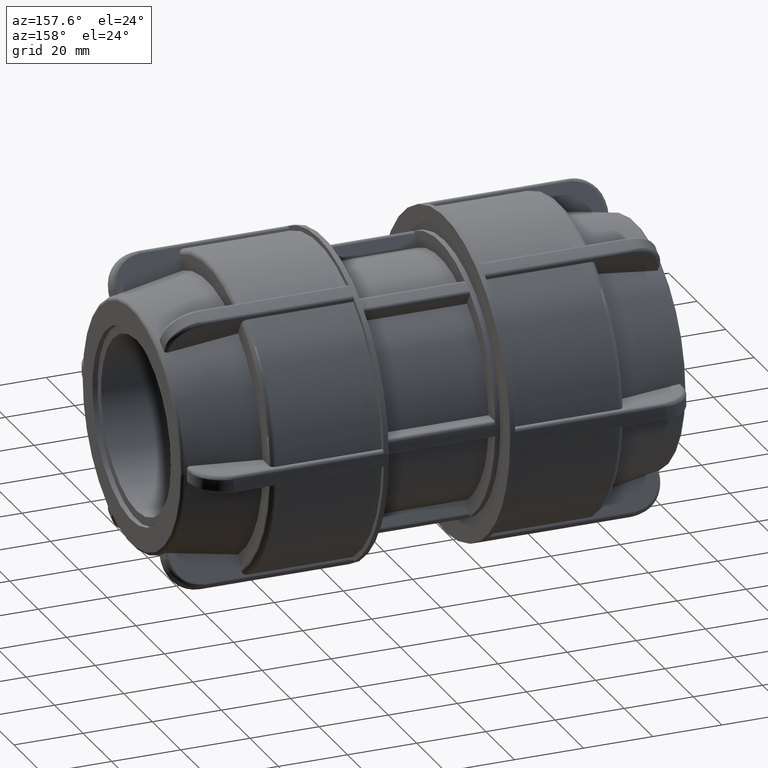
[diagram: clean part render]
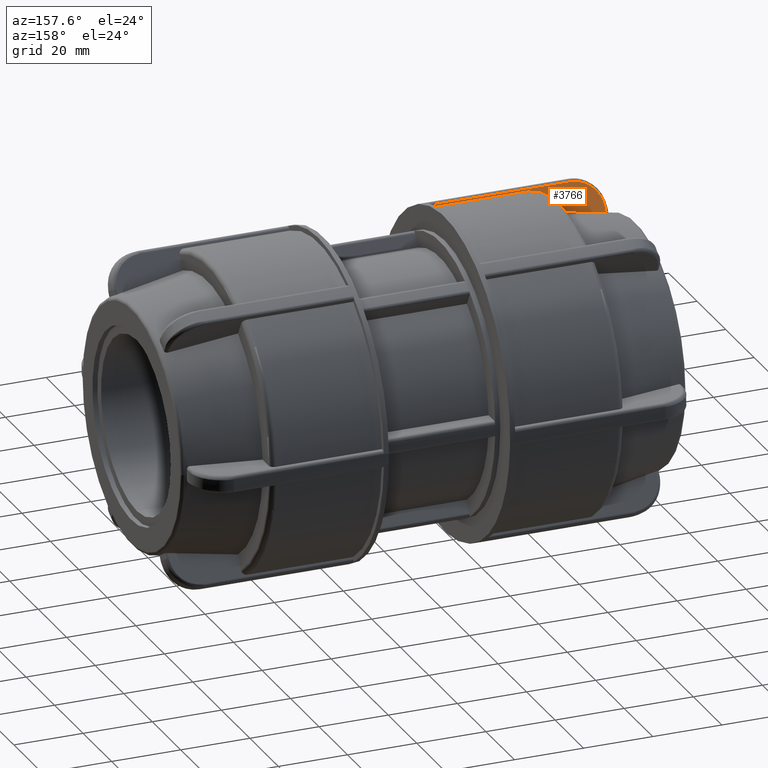
[diagram: same view with one face highlighted and labeled with its STEP entity id]
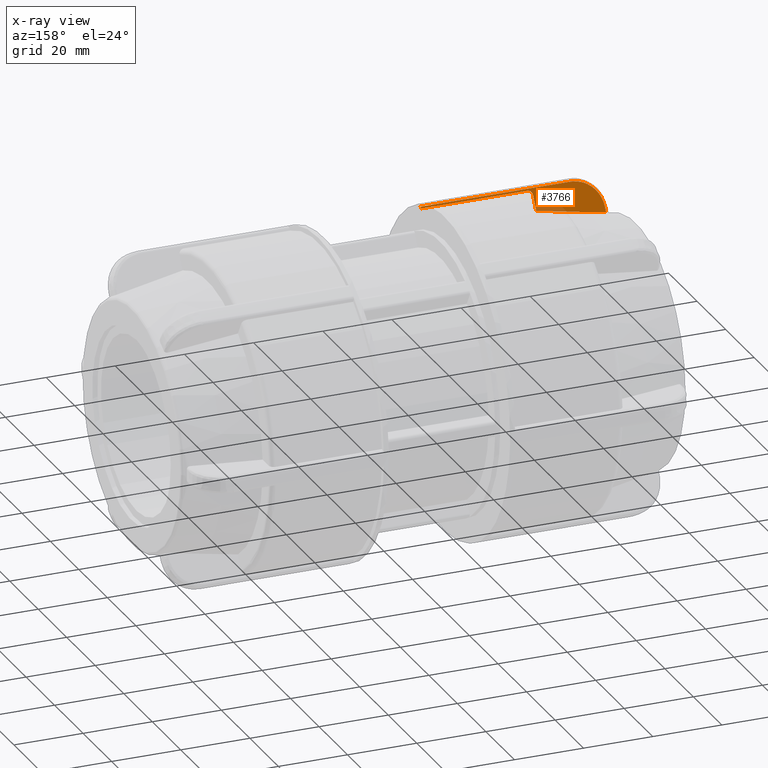
[diagram: x-ray of the same camera — body ghosted, the highlighted face saturated]
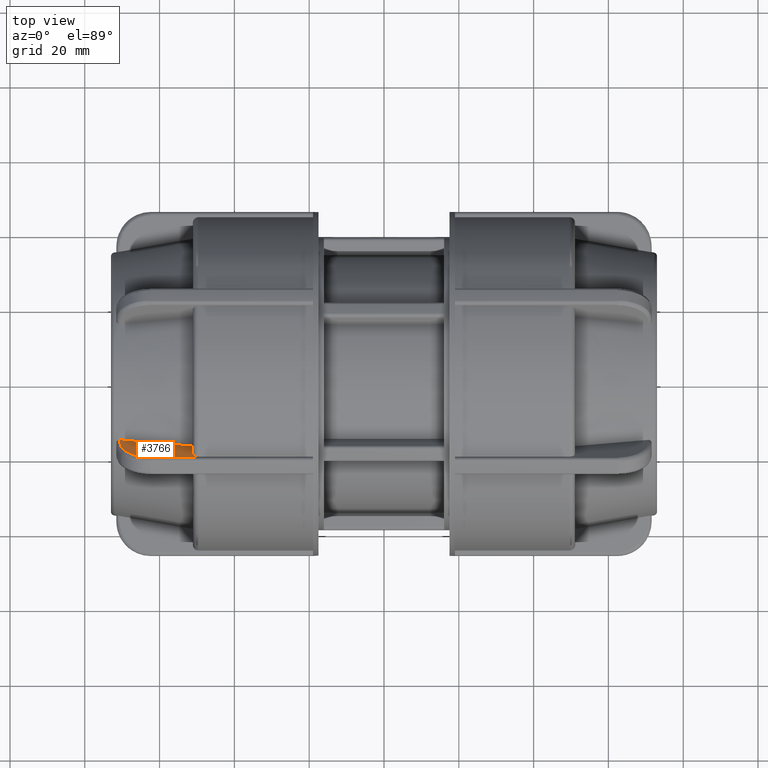
[diagram: same view with one face highlighted and labeled with its STEP entity id]
A machine part, auxiliary view. The second image highlights one B-rep face of the part: STEP entity #3766.
The next image is the same camera in x-ray: the body ghosted, the highlighted face saturated — about 10% of this face is hidden behind the body in this view.
A second angle (top view) of the same face is appended — the face is thin or edge-on in the first view.
In plain terms, the highlighted planar face has unit normal (0, -0.866, -0.5).
Its self-contained STEP definition (entity closure, byte-faithful):
#46=(
BOUNDED_CURVE()
B_SPLINE_CURVE(2,(#6333,#6334,#6335),.UNSPECIFIED.,.F.,.F.)
B_SPLINE_CURVE_WITH_KNOTS((3,3),(0.0978862877248222,2.07567538684826),
 .UNSPECIFIED.)
CURVE()
GEOMETRIC_REPRESENTATION_ITEM()
RATIONAL_B_SPLINE_CURVE((1.00010692554984,1.00113367631557,1.))
REPRESENTATION_ITEM('')
);
#89=B_SPLINE_CURVE_WITH_KNOTS('',3,(#6292,#6293,#6294,#6295,#6296,#6297),
 .UNSPECIFIED.,.F.,.F.,(4,1,1,4),(1.24596384107154E-15,0.371736165701564,
0.743472331403127,1.30107657995547),.UNSPECIFIED.);
#91=B_SPLINE_CURVE_WITH_KNOTS('',3,(#6321,#6322,#6323,#6324,#6325,#6326,
#6327,#6328,#6329,#6330),.UNSPECIFIED.,.F.,.F.,(4,2,2,2,4),(-0.216397312035065,
-0.162223664148742,-0.108098313662018,-0.0540274345760969,0.),
 .UNSPECIFIED.);
#243=PLANE('',#4086);
#380=FACE_OUTER_BOUND('',#622,.T.);
#622=EDGE_LOOP('',(#2808,#2809,#2810,#2811,#2812,#2813,#2814,#2815));
#890=LINE('',#6252,#1118);
#892=LINE('',#6314,#1120);
#893=LINE('',#6317,#1121);
#894=LINE('',#6319,#1122);
#895=LINE('',#6332,#1123);
#1118=VECTOR('',#4786,43.36);
#1120=VECTOR('',#4792,1.4347456628945);
#1121=VECTOR('',#4795,0.502393846991423);
#1122=VECTOR('',#4796,30.66);
#1123=VECTOR('',#4797,4.30647030369141);
#1634=VERTEX_POINT('',#6248);
#1635=VERTEX_POINT('',#6250);
#1636=VERTEX_POINT('',#6283);
#1638=VERTEX_POINT('',#6299);
#1640=VERTEX_POINT('',#6316);
#1641=VERTEX_POINT('',#6318);
#1642=VERTEX_POINT('',#6320);
#1643=VERTEX_POINT('',#6331);
#2076=EDGE_CURVE('',#1635,#1634,#890,.T.);
#2079=EDGE_CURVE('',#1634,#1636,#89,.T.);
#2082=EDGE_CURVE('',#1636,#1638,#892,.T.);
#2083=EDGE_CURVE('',#1640,#1635,#893,.T.);
#2084=EDGE_CURVE('',#1641,#1640,#894,.T.);
#2085=EDGE_CURVE('',#1642,#1641,#91,.T.);
#2086=EDGE_CURVE('',#1643,#1642,#895,.T.);
#2087=EDGE_CURVE('',#1638,#1643,#46,.T.);
#2808=ORIENTED_EDGE('',*,*,#2082,.F.);
#2809=ORIENTED_EDGE('',*,*,#2079,.F.);
#2810=ORIENTED_EDGE('',*,*,#2076,.F.);
#2811=ORIENTED_EDGE('',*,*,#2083,.F.);
#2812=ORIENTED_EDGE('',*,*,#2084,.F.);
#2813=ORIENTED_EDGE('',*,*,#2085,.F.);
#2814=ORIENTED_EDGE('',*,*,#2086,.F.);
#2815=ORIENTED_EDGE('',*,*,#2087,.F.);
#3766=ADVANCED_FACE('',(#380),#243,.F.);
#4086=AXIS2_PLACEMENT_3D('',#6315,#4793,#4794);
#4786=DIRECTION('',(-1.,-3.26327202520676E-16,-1.07183239180772E-17));
#4792=DIRECTION('',(-1.92611444793221E-16,0.5,-0.866025403784439));
#4793=DIRECTION('center_axis',(2.87966809287854E-16,-0.866025403784439,
-0.5));
#4794=DIRECTION('ref_axis',(3.5527136788005E-16,-0.5,0.866025403784439));
#4795=DIRECTION('',(1.53080849893419E-16,-0.5,0.866025403784439));
#4796=DIRECTION('',(1.,3.06161699786838E-16,0.));
#4797=DIRECTION('',(1.53080849893419E-16,-0.5,0.866025403784439));
#6248=CARTESIAN_POINT('',(-62.34,-20.3610879594428,40.2664388431338));
#6250=CARTESIAN_POINT('',(-18.98,-20.3610879594428,40.2664388431338));
#6252=CARTESIAN_POINT('',(-18.25,-20.3610879594428,40.2664388431338));
#6283=CARTESIAN_POINT('',(-70.62,-16.21796942855,33.0903470458474));
#6292=CARTESIAN_POINT('Ctrl Pts',(-62.34,-20.3610879594428,40.2664388431338));
#6293=CARTESIAN_POINT('Ctrl Pts',(-63.5791205523385,-20.3610879594428,40.2664388431338));
#6294=CARTESIAN_POINT('Ctrl Pts',(-66.0530906323706,-20.0773873433546,39.7750549619305));
#6295=CARTESIAN_POINT('Ctrl Pts',(-69.5354965600346,-18.6907634316552,37.3733518958773));
#6296=CARTESIAN_POINT('Ctrl Pts',(-70.62,-17.1473098428039,34.7000118608622));
#6297=CARTESIAN_POINT('Ctrl Pts',(-70.62,-16.21796942855,33.0903470458474));
#6299=CARTESIAN_POINT('',(-70.62,-15.5005965971027,31.8478208538112));
#6314=CARTESIAN_POINT('',(-70.62,-9.02474289793983,20.6313132244781));
#6315=CARTESIAN_POINT('Origin',(-17.52,-5.08801170040678,13.8126947746095));
#6316=CARTESIAN_POINT('',(-18.98,-20.1098910359471,39.8313530089343));
#6317=CARTESIAN_POINT('',(-18.98,4.11602590452715,-2.12916599191067));
#6318=CARTESIAN_POINT('',(-49.64,-20.1098910359471,39.8313530089343));
#6319=CARTESIAN_POINT('',(-35.04,-20.1098910359471,39.8313530089343));
#6320=CARTESIAN_POINT('',(-51.1,-19.3787035706018,38.5648991690987));
#6321=CARTESIAN_POINT('Ctrl Pts',(-51.1,-19.3787035706018,38.5648991690987));
#6322=CARTESIAN_POINT('Ctrl Pts',(-51.1,-19.4689929837456,38.7212850200494));
#6323=CARTESIAN_POINT('Ctrl Pts',(-51.0577761184351,-19.5752634992127,38.905350952185));
#6324=CARTESIAN_POINT('Ctrl Pts',(-50.9197401615621,-19.7420452908141,39.194225489016));
#6325=CARTESIAN_POINT('Ctrl Pts',(-50.7995595234617,-19.8320862138308,39.3501809424412));
#6326=CARTESIAN_POINT('Ctrl Pts',(-50.5446615656108,-19.9596581640223,39.5711420417936));
#6327=CARTESIAN_POINT('Ctrl Pts',(-50.3648942520846,-20.019787758295,39.6752895541123));
#6328=CARTESIAN_POINT('Ctrl Pts',(-50.0320394097568,-20.0887872404001,39.7948001628143));
#6329=CARTESIAN_POINT('Ctrl Pts',(-49.820091448587,-20.1098910359471,39.8313530089343));
#6330=CARTESIAN_POINT('Ctrl Pts',(-49.64,-20.1098910359471,39.8313530089343));
#6331=CARTESIAN_POINT('',(-51.1,-17.2254684187561,34.8353864854586));
#6332=CARTESIAN_POINT('',(-51.1,3.39622101421656,-0.88242735035621));
#6333=CARTESIAN_POINT('Ctrl Pts',(-70.6200000000002,-15.5005965971027,31.8478208538111));
#6334=CARTESIAN_POINT('Ctrl Pts',(-61.3143027867637,-16.3230706257123,33.2723876592688));
#6335=CARTESIAN_POINT('Ctrl Pts',(-51.1,-17.2254684187561,34.8353864854586));